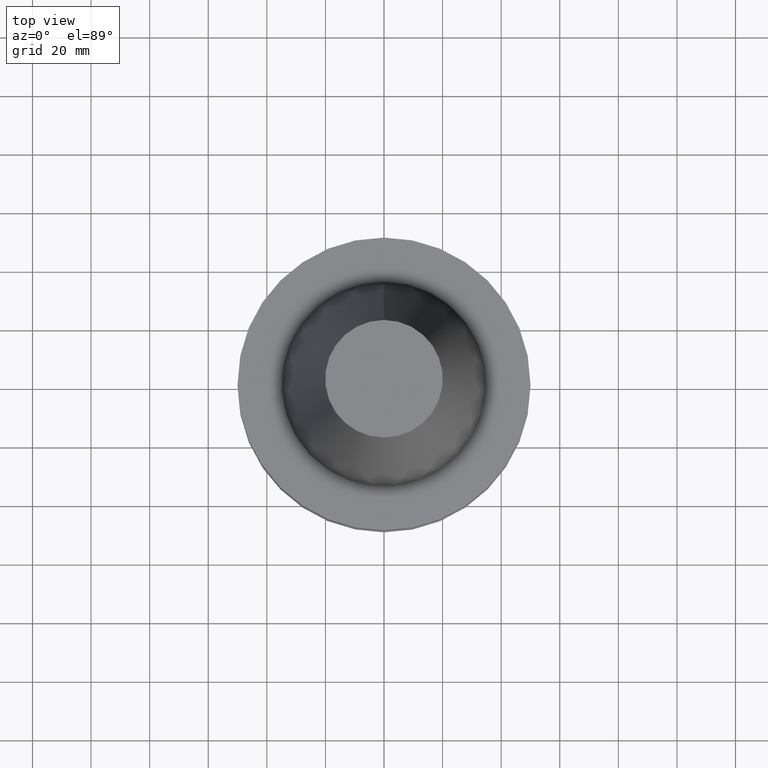
[diagram: clean part render]
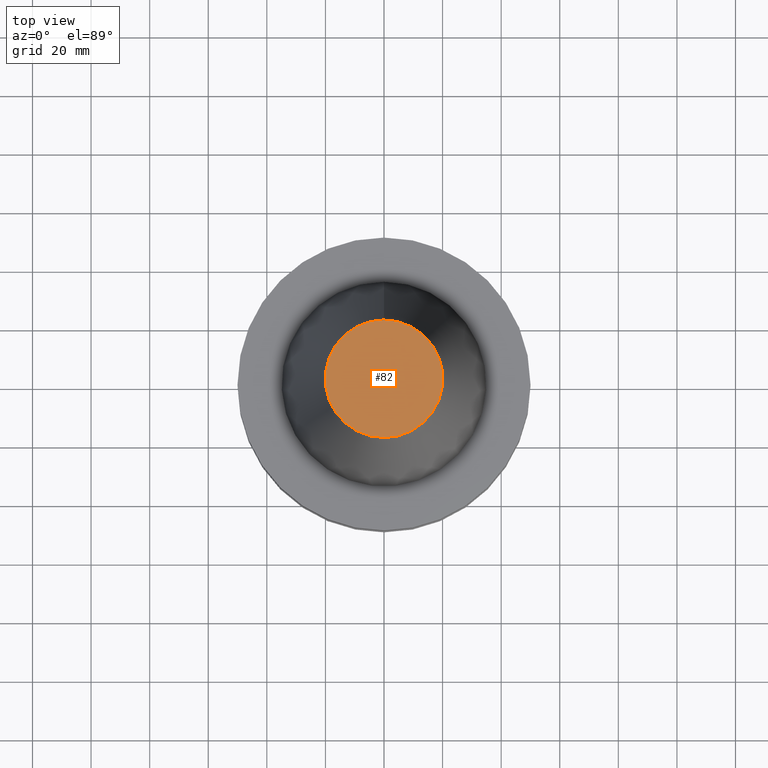
[diagram: same view with one face highlighted and labeled with its STEP entity id]
A machine part, top view. The second image highlights one B-rep face of the part: STEP entity #82.
In plain terms, the highlighted planar face has unit normal (-0, -0, 1).
Its self-contained STEP definition (entity closure, byte-faithful):
#82=ADVANCED_FACE('Unnamed[1]',(#214),#215,.T.);
#95=EDGE_CURVE('Unnamed[1]',#235,#235,#236,.T.);
#214=FACE_OUTER_BOUND('',#399,.T.);
#215=PLANE('',#400);
#235=VERTEX_POINT('',#425);
#236=CIRCLE('',#426,20.0791666651884);
#399=EDGE_LOOP('',(#611));
#400=AXIS2_PLACEMENT_3D('',#612,#613,#614);
#425=CARTESIAN_POINT('',(-6.23345220766003E-015,20.0791666651884,101.8));
#426=AXIS2_PLACEMENT_3D('',#636,#637,#638);
#611=ORIENTED_EDGE('',*,*,#95,.F.);
#612=CARTESIAN_POINT('',(-6.23345220766003E-015,10.0395833325942,101.8));
#613=DIRECTION('',(-6.12323399573677E-017,-1.22464679914735E-016,1.0));
#614=DIRECTION('',(1.23259516440783E-032,-1.0,-1.22464679914735E-016));
#636=CARTESIAN_POINT('',(-6.23345220766003E-015,-1.24669044153201E-014,101.8));
#637=DIRECTION('',(6.12323399573677E-017,1.22464679914713E-016,-1.0));
#638=DIRECTION('',(-1.23259516440767E-032,1.0,1.22464679914713E-016));